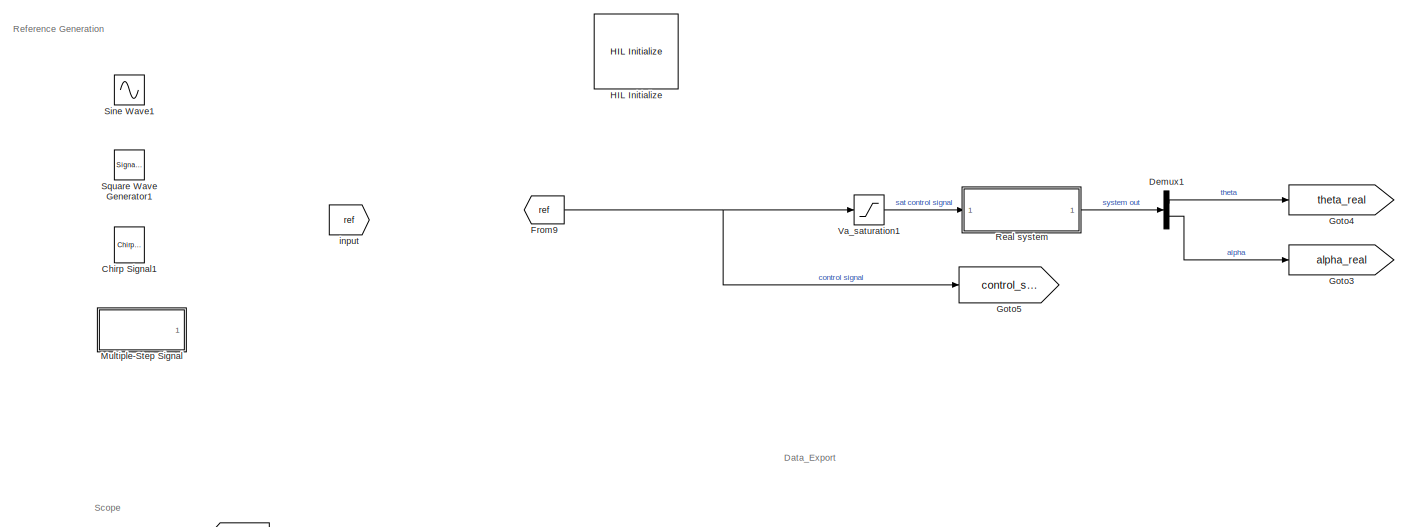
[diagram: root canvas - part 1/2, full width, middle band]
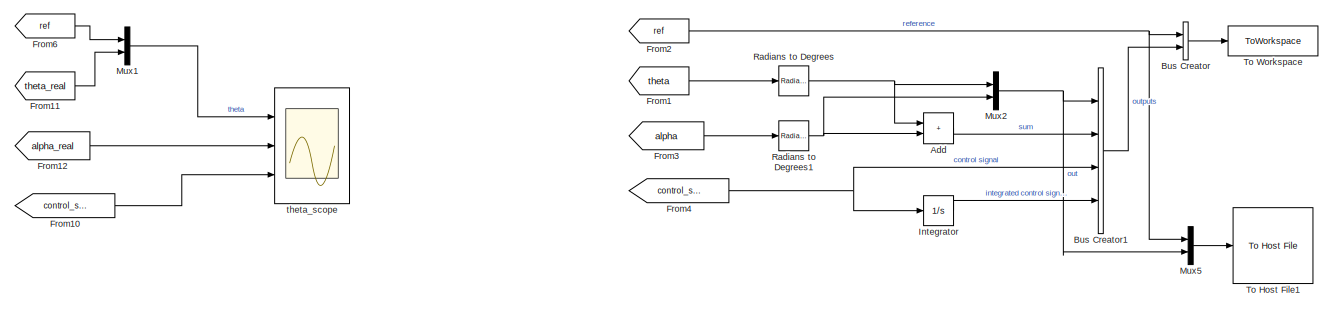
[diagram: root canvas - part 2/2, full width, bottom band]
MODEL slx_b290d8560bc7
KIND model
CONFIG AbsTol = auto
CONFIG EnableMultiTasking = on
CONFIG FixedStep = 0.002
CONFIG MaxStep = auto
CONFIG MinStep = auto
CONFIG PostLoadFcn = qc_set_target_type(getConfigSet(bdroot, 'QUARC Default Target Configuration'));
CONFIG RelTol = 1e-3
CONFIG SampleTimeConstraint = Unconstrained
CONFIG Solver = ode1
CONFIG SolverName = ode1
CONFIG StartTime = 0.0
CONFIG StopTime = inf
BLOCK [Sum] Add
  IconShape = rectangular
  Ports = [2, 1]
BLOCK [BusCreator] Bus Creator
  DisplayOption = bar
  InheritFromInputs = on
  Inputs = 2
  Ports = [2, 1]
BLOCK [BusCreator] Bus Creator1
  DisplayOption = bar
  InheritFromInputs = on
  Inputs = 4
  Ports = [4, 1]
BLOCK [Reference] Chirp Signal1  REF=simulink/Sources/Chirp Signal
  Ports = [0, 1]
  SourceBlock = simulink/Sources/Chirp Signal
  SourceType = chirp
BLOCK [Demux] Demux1
  Outputs = 2
  Ports = [1, 2]
BLOCK [From] From1
  GotoTag = theta
BLOCK [From] From10
  GotoTag = control_signal_real
BLOCK [From] From11
  GotoTag = theta_real
BLOCK [From] From12
  GotoTag = alpha_real
BLOCK [From] From2
  GotoTag = ref
BLOCK [From] From3
  GotoTag = alpha
BLOCK [From] From4
  GotoTag = control_signal
BLOCK [From] From6
  GotoTag = ref
BLOCK [From] From9
  GotoTag = ref
BLOCK [Goto] Goto3
  GotoTag = alpha_real
BLOCK [Goto] Goto4
  GotoTag = theta_real
BLOCK [Goto] Goto5
  GotoTag = control_signal_real
BLOCK [Reference] HIL Initialize  REF=quarc_library/Data Acquisition/Generic/Configuration/HIL Initialize
  AttributesFormatString = %<object_name> (%<board_type>-%<board_number>)
  Ports = []
  Priority = -99
  SourceBlock = quarc_library/Data Acquisition/Generic/Configuration/HIL Initialize
  SourceType = HIL Initialize
  UserDataPersistent = on
BLOCK [Integrator] Integrator
  Ports = [1, 1]
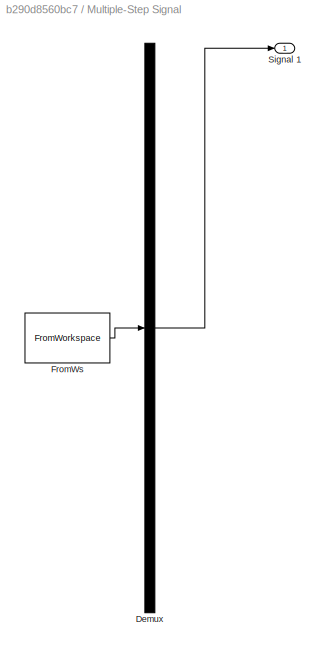
BLOCK [SubSystem] Multiple-Step Signal
  ClipboardFcn = sigbuilder_block('clipboard');
  CloseFcn = sigbuilder_block('close');
  ContinueFcn = sigbuilder_block('continue');
  CopyFcn = sigbuilder_block('copy');
  DeleteFcn = sigbuilder_block('delete');
  LoadFcn = sigbuilder_block('load');
  MaskHideContents = on
  ModelCloseFcn = sigbuilder_block('modelClose');
  NameChangeFcn = sigbuilder_block('namechange');
  OpenFcn = sigbuilder_block('open',[437.6 199.2 550.4 400 ]);
  PauseFcn = sigbuilder_block('pause');
  Ports = [0, 1]
  PreSaveFcn = sigbuilder_block('preSave');
  StartFcn = sigbuilder_block('start');
  StopFcn = sigbuilder_block('stop');
  Tag = STV Subsys
BLOCK [Demux] Multiple-Step Signal/Demux
  DisplayOption = none
  Outputs = 1
  Ports = [1, 1]
  Tag = STV Demux
BLOCK [FromWorkspace] Multiple-Step Signal/FromWs
  Tag = STV FromWs
  VariableName = tuvar
BLOCK [Outport] Multiple-Step Signal/Signal 1
  Tag = STV Outport
BLOCK [Mux] Mux1
  DisplayOption = bar
  Inputs = 2
  Ports = [2, 1]
BLOCK [Mux] Mux2
  DisplayOption = bar
  Inputs = 2
  Ports = [2, 1]
BLOCK [Mux] Mux5
  DisplayOption = bar
  Inputs = 2
  Ports = [2, 1]
BLOCK [Reference] Radians to Degrees  REF=simulink_extras/Transformations/Radians
to Degrees
  Ports = [1, 1]
  SourceBlock = simulink_extras/Transformations/Radians\nto Degrees
  SourceType = RadiansToDegrees
BLOCK [Reference] Radians to Degrees1  REF=simulink_extras/Transformations/Radians
to Degrees
  Ports = [1, 1]
  SourceBlock = simulink_extras/Transformations/Radians\nto Degrees
  SourceType = RadiansToDegrees
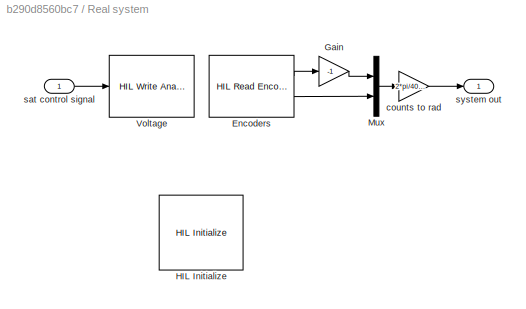
BLOCK [SubSystem] Real system
  Ports = [1, 1]
BLOCK [Reference] Real system/Encoders  REF=quarc_library/Data Acquisition/Generic/Timebases/HIL Read Encoder
Timebase
  AttributesFormatString = (%<object_name>)
  Ports = [0, 2]
  SourceBlock = quarc_library/Data Acquisition/Generic/Timebases/HIL Read Encoder\nTimebase
  SourceType = HIL Read Encoder Timebase
  UserDataPersistent = on
BLOCK [Gain] Real system/Gain
  Gain = -1
BLOCK [Reference] Real system/HIL Initialize  REF=quarc_library/Data Acquisition/Generic/Configuration/HIL Initialize
  AttributesFormatString = %<object_name> (%<board_type>-%<board_number>)
  Commented = on
  Ports = []
  Priority = -99
  SourceBlock = quarc_library/Data Acquisition/Generic/Configuration/HIL Initialize
  SourceType = HIL Initialize
  UserDataPersistent = on
BLOCK [Mux] Real system/Mux
  DisplayOption = bar
  Inputs = 2
  Ports = [2, 1]
BLOCK [Reference] Real system/Voltage  REF=quarc_library/Data Acquisition/Generic/Immediate I//O/HIL Write Analog
  AttributesFormatString = (%<object_name>)
  Ports = [1]
  SourceBlock = quarc_library/Data Acquisition/Generic/Immediate I//O/HIL Write Analog
  SourceType = HIL Write Analog
  UserDataPersistent = on
BLOCK [Gain] Real system/counts to rad
  Gain = 2*pi/4096
BLOCK [Inport] Real system/sat control signal
BLOCK [Outport] Real system/system out
BLOCK [Sin] Sine Wave1
  Frequency = 24
  Ports = [0, 1]
  SampleTime = 0
BLOCK [SignalGenerator] Square Wave Generator1
  Ports = [0, 1]
  Units = rad/sec
  WaveForm = square
BLOCK [Reference] To Host File1  REF=quarc_library/Sinks/To Host/To Host File
  AttributesFormatString = %<final_file_name>
  Ports = [1]
  SourceBlock = quarc_library/Sinks/To Host/To Host File
  SourceType = To Host File
BLOCK [ToWorkspace] To Workspace
  FixptAsFi = on
  MaxDataPoints = inf
  Ports = [1]
  SampleTime = -1
  VariableName = data
BLOCK [Saturate] Va_saturation1
  LowerLimit = -v_a_max
  UpperLimit = v_a_max
BLOCK [Goto] input
  GotoTag = ref
BLOCK [Scope] theta_scope
  Floating = off
  NumInputPorts = 3
  Ports = [3]
  ScopeSpecificationString = Simulink.scopes.TimeScopeBlockCfg('CurrentConfiguration', extmgr.ConfigurationSet(extmgr.Configuration('Core','General UI',true),extmgr.Configuration('Core','Source UI',true),extmgr.Configuration('Sources','WiredSimulink',true,'DataLoggingVariableName','ScopeData1'),extmgr.Configuration('Visuals','Time Domain',true,'SerializedDisplays',{struct('MinYLimReal','-9.02864','MaxYLimReal','81.25773','YLa...<+2972ch>
ANNOTATION (root): Data_Export
ANNOTATION (root): Reference Generation
ANNOTATION (root): Scope
LINE Add:1 -> Bus Creator1:2
LINE Bus Creator1:1 -> Bus Creator:2
LINE Bus Creator:1 -> To Workspace:1
LINE Demux1:1 -> Goto4:1
LINE Demux1:2 -> Goto3:1
LINE From10:1 -> theta_scope:3
LINE From11:1 -> Mux1:2
LINE From12:1 -> theta_scope:2
LINE From1:1 -> Radians to Degrees:1
NET From2:1 -> Bus Creator:1, Mux5:1
LINE From3:1 -> Radians to Degrees1:1
NET From4:1 -> Bus Creator1:3, Integrator:1
LINE From6:1 -> Mux1:1
NET From9:1 -> Goto5:1, Va_saturation1:1
LINE Integrator:1 -> Bus Creator1:4
LINE Mux1:1 -> theta_scope:1
NET Mux2:1 -> Bus Creator1:1, Mux5:2
LINE Mux5:1 -> To Host File1:1
NET Radians to Degrees1:1 -> Add:2, Mux2:2
NET Radians to Degrees:1 -> Add:1, Mux2:1
LINE Real system/Encoders:1 -> Real system/Gain:1
LINE Real system/Encoders:2 -> Real system/Mux:2
LINE Real system/Gain:1 -> Real system/Mux:1
LINE Real system/Mux:1 -> Real system/counts to rad:1
LINE Real system/counts to rad:1 -> Real system/system out:1
LINE Real system/sat control signal:1 -> Real system/Voltage:1
LINE Real system:1 -> Demux1:1
LINE Va_saturation1:1 -> Real system:1
note: NET lines group one-source signal fan-out (src -> all destinations, sorted); 1:1 wires keep LINE
